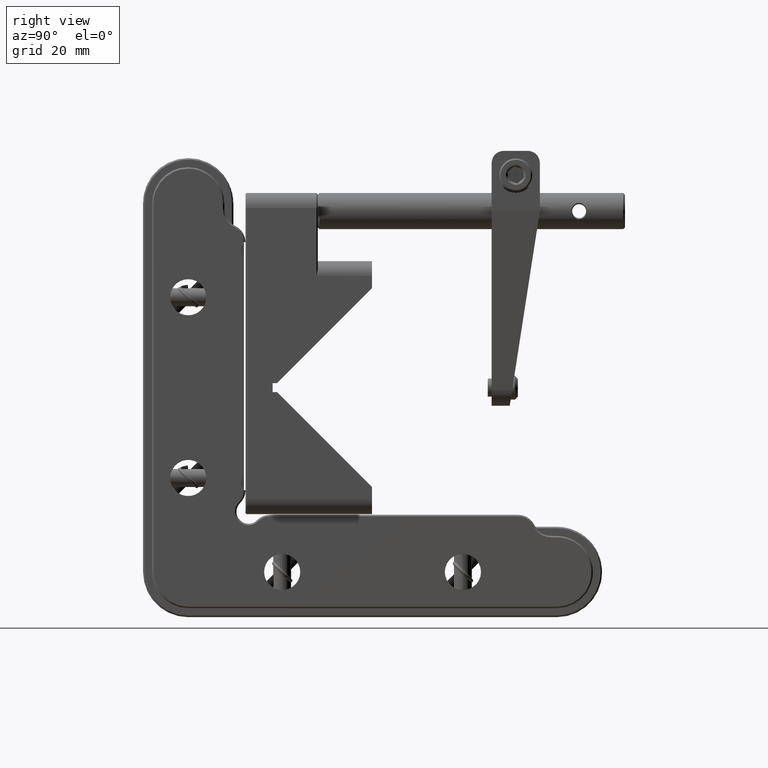
[diagram: clean part render]
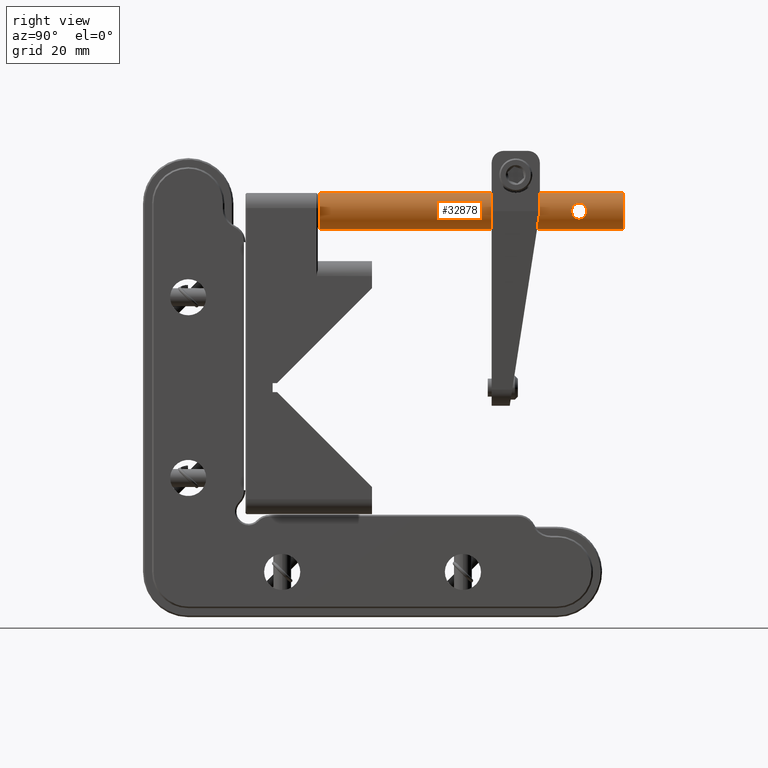
[diagram: same view with one face highlighted and labeled with its STEP entity id]
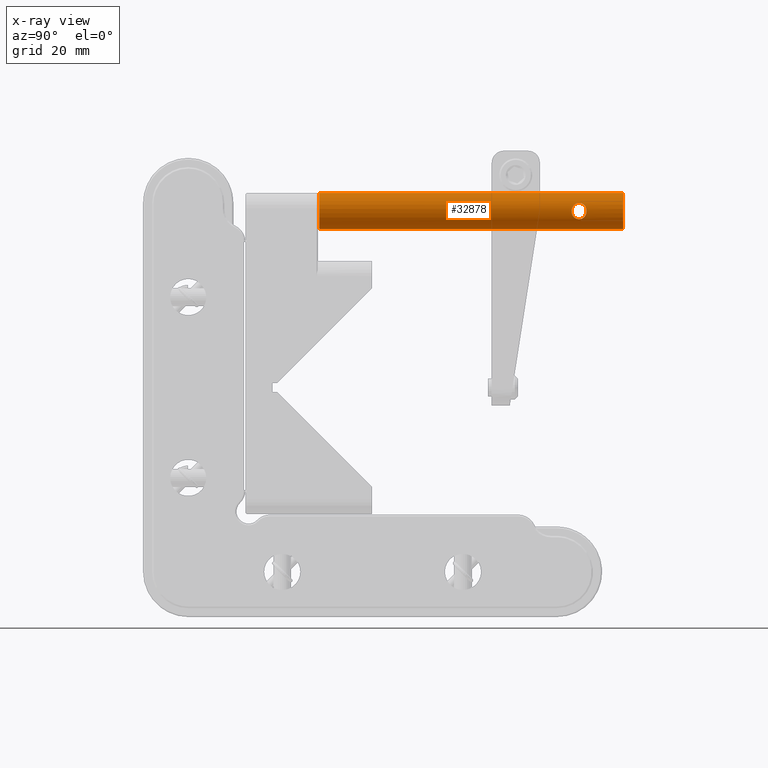
[diagram: x-ray of the same camera — body ghosted, the highlighted face saturated]
A machine part, right view. The second image highlights one B-rep face of the part: STEP entity #32878.
The next image is the same camera in x-ray: the body ghosted, the highlighted face saturated — about 0% of this face is hidden behind the body in this view.
In plain terms, the highlighted cylindrical surface (edge-blend (fillet) strip) has radius 3 mm, axis along (0, 1, 0).
Its self-contained STEP definition (entity closure, byte-faithful):
#115 = EDGE_LOOP ( 'NONE', ( #31684, #43136 ) ) ;
#433 = FACE_OUTER_BOUND ( 'NONE', #32972, .T. ) ;
#723 = EDGE_CURVE ( 'NONE', #34373, #32901, #19342, .T. ) ;
#1007 = CARTESIAN_POINT ( 'NONE',  ( 14.42555659735598184, 35.38117631926300533, 28.63320437474260771 ) ) ;
#2504 = DIRECTION ( 'NONE',  ( 0.000000000000000000, 1.000000000000000000, 0.000000000000000000 ) ) ;
#2519 = ORIENTED_EDGE ( 'NONE', *, *, #40639, .T. ) ;
#2541 = CARTESIAN_POINT ( 'NONE',  ( 14.49606779950914159, 35.53141194402265057, 29.30027228311324450 ) ) ;
#3558 = DIRECTION ( 'NONE',  ( 0.000000000000000000, 0.000000000000000000, 1.000000000000000000 ) ) ;
#3627 = CARTESIAN_POINT ( 'NONE',  ( 14.25977099211337951, 33.62618597570745038, 30.46971283732862190 ) ) ;
#3792 = FACE_BOUND ( 'NONE', #115, .T. ) ;
#4101 = CARTESIAN_POINT ( 'NONE',  ( 14.49605192030435319, 35.53137949943939589, 29.47522846602337765 ) ) ;
#4362 = DIRECTION ( 'NONE',  ( -1.000000000000000000, 0.000000000000000000, 0.000000000000000000 ) ) ;
#4844 = CARTESIAN_POINT ( 'NONE',  ( 14.42529384615246180, 33.17942465290518328, 28.63230550279885023 ) ) ;
#5550 = CARTESIAN_POINT ( 'NONE',  ( 14.25979527131619307, 34.93390188683142128, 28.13034303596488783 ) ) ;
#6124 = VERTEX_POINT ( 'NONE', #19778 ) ;
#6344 = LINE ( 'NONE', #16421, #18990 ) ;
#6590 = DIRECTION ( 'NONE',  ( 0.000000000000000000, 1.000000000000000000, 0.000000000000000000 ) ) ;
#6733 = VECTOR ( 'NONE', #6590, 1000.000000000000000 ) ;
#6756 = CARTESIAN_POINT ( 'NONE',  ( 14.42525751429290359, 35.38049334602149543, 29.96784628500989811 ) ) ;
#8039 = B_SPLINE_CURVE_WITH_KNOTS ( 'NONE', 3,
 ( #21877, #36491, #18732, #28596, #22345, #32657, #3627, #29072, #36248, #36960, #18260, #33360, #28841, #43712, #21639, #40093, #6756, #24997, #4101, #14892 ),
 .UNSPECIFIED., .F., .F.,
 ( 4, 2, 2, 2, 2, 2, 2, 2, 2, 4 ),
 ( 3.469446951953614189E-18, 0.0005167637206666471795, 0.001033527441333290890, 0.001550291161999934600, 0.002067054882666578310, 0.002325436742999910898, 0.002583818603333242619, 0.003100582323999902159, 0.003617346044666561265, 0.004134109765333220804 ),
 .UNSPECIFIED. ) ;
#8436 = CARTESIAN_POINT ( 'NONE',  ( 14.30303947073399229, 33.49154316524111863, 28.23307355668145036 ) ) ;
#8914 = CARTESIAN_POINT ( 'NONE',  ( 14.30376987810628009, 35.07060263748739715, 28.23501115534193318 ) ) ;
#9952 = CARTESIAN_POINT ( 'NONE',  ( 14.49606781186548865, 33.02858803072962246, 29.30000000000000071 ) ) ;
#12273 = CARTESIAN_POINT ( 'NONE',  ( 14.48052246102774632, 35.50051483220195081, 28.95423794703473064 ) ) ;
#12501 = CARTESIAN_POINT ( 'NONE',  ( 14.17223602422485484, 34.19785062313397361, 27.94422575273011944 ) ) ;
#12645 = DIRECTION ( 'NONE',  ( -5.782411586589328056E-16, 1.000000000000000000, 5.782411586589351722E-16 ) ) ;
#14377 = ORIENTED_EDGE ( 'NONE', *, *, #723, .T. ) ;
#14892 = CARTESIAN_POINT ( 'NONE',  ( 14.49606779950914159, 35.53141194402265057, 29.30027228311324450 ) ) ;
#16421 = CARTESIAN_POINT ( 'NONE',  ( 11.49606781186549931, -13.84119999999959916, 26.30000000000000071 ) ) ;
#16569 = CARTESIAN_POINT ( 'NONE',  ( 14.49608366011930372, 35.53144435061337703, 29.12552097475968438 ) ) ;
#18154 = EDGE_CURVE ( 'NONE', #43014, #34373, #6344, .T. ) ;
#18260 = CARTESIAN_POINT ( 'NONE',  ( 14.17718052765200731, 34.44998604857039481, 30.64613417799378681 ) ) ;
#18430 = CARTESIAN_POINT ( 'NONE',  ( 11.49606781186549931, -13.84119999999959916, 29.30000000000000071 ) ) ;
#18486 = EDGE_CURVE ( 'NONE', #6124, #32901, #36564, .T. ) ;
#18605 = CIRCLE ( 'NONE', #46216, 2.999999999999997335 ) ;
#18732 = CARTESIAN_POINT ( 'NONE',  ( 14.48049490086300040, 33.05954089098165838, 29.64598672048369465 ) ) ;
#18904 = CYLINDRICAL_SURFACE ( 'NONE', #26336, 3.000000000000002665 ) ;
#18990 = VECTOR ( 'NONE', #2504, 1000.000000000000000 ) ;
#19342 = CIRCLE ( 'NONE', #25477, 2.999999999999993783 ) ;
#19483 = CARTESIAN_POINT ( 'NONE',  ( 14.17718045251483439, 34.11000545220029778, 27.95386559678504668 ) ) ;
#19719 = CARTESIAN_POINT ( 'NONE',  ( 14.19415199656438453, 34.62928754115883834, 27.98598758913189855 ) ) ;
#19778 = CARTESIAN_POINT ( 'NONE',  ( 11.49606781186547266, -8.799999999999620570, 32.29999999999999716 ) ) ;
#19958 = CARTESIAN_POINT ( 'NONE',  ( 14.49606781186548865, 33.02858806568104200, 29.12501886983622157 ) ) ;
#21639 = CARTESIAN_POINT ( 'NONE',  ( 14.30301436364105072, 35.06837702673509227, 30.36698880926079980 ) ) ;
#21877 = CARTESIAN_POINT ( 'NONE',  ( 14.49606781186548865, 33.02858803072962246, 29.30000000000000071 ) ) ;
#22345 = CARTESIAN_POINT ( 'NONE',  ( 14.38635186985917791, 33.26701775845934606, 30.11464250985932267 ) ) ;
#23321 = CARTESIAN_POINT ( 'NONE',  ( 14.38589572499132885, 33.26808570003787224, 28.48371784188181266 ) ) ;
#23795 = CARTESIAN_POINT ( 'NONE',  ( 14.49606781186548865, 33.02858803072962246, 29.30000000000000071 ) ) ;
#23861 = CARTESIAN_POINT ( 'NONE',  ( 11.49606781186552595, 41.60000000000000142, 26.30000000000000782 ) ) ;
#24014 = VERTEX_POINT ( 'NONE', #9952 ) ;
#24025 = CARTESIAN_POINT ( 'NONE',  ( 14.17268640774572042, 34.45622813046223598, 27.94511501085904470 ) ) ;
#24119 = ORIENTED_EDGE ( 'NONE', *, *, #18154, .T. ) ;
#24997 = CARTESIAN_POINT ( 'NONE',  ( 14.48008954775475132, 35.49960807160828580, 29.64897743902537286 ) ) ;
#25159 = CARTESIAN_POINT ( 'NONE',  ( 11.49606781186549931, 41.60000000000000142, 32.29999999999999716 ) ) ;
#25477 = AXIS2_PLACEMENT_3D ( 'NONE', #30970, #37930, #4362 ) ;
#26336 = AXIS2_PLACEMENT_3D ( 'NONE', #18430, #33525, #3558 ) ;
#26679 = CARTESIAN_POINT ( 'NONE',  ( 14.25916243192784805, 33.62769392605834895, 28.12880134165838797 ) ) ;
#28596 = CARTESIAN_POINT ( 'NONE',  ( 14.42551725332261903, 33.17891308938466466, 29.96696164075582303 ) ) ;
#28841 = CARTESIAN_POINT ( 'NONE',  ( 14.20940239311476105, 34.69934819604343801, 30.58039616914104997 ) ) ;
#28913 = CARTESIAN_POINT ( 'NONE',  ( 11.49606781186549931, -13.84119999999959916, 32.30000000000000426 ) ) ;
#29072 = CARTESIAN_POINT ( 'NONE',  ( 14.19414408695442731, 33.93077347352075179, 30.61402732244268776 ) ) ;
#30970 = CARTESIAN_POINT ( 'NONE',  ( 11.49606781186549220, 41.60000000000000853, 29.30000000000000071 ) ) ;
#30983 = CARTESIAN_POINT ( 'NONE',  ( 14.19580050271296123, 33.94192845880744613, 27.99160930095860067 ) ) ;
#31616 = EDGE_CURVE ( 'NONE', #37036, #24014, #34765, .T. ) ;
#31684 = ORIENTED_EDGE ( 'NONE', *, *, #31616, .T. ) ;
#32657 = CARTESIAN_POINT ( 'NONE',  ( 14.30373879143920313, 33.48949615420276160, 30.36506714587482136 ) ) ;
#32878 = ADVANCED_FACE ( 'NONE', ( #3792, #433 ), #18904, .T. ) ;
#32901 = VERTEX_POINT ( 'NONE', #25159 ) ;
#32972 = EDGE_LOOP ( 'NONE', ( #2519, #24119, #14377, #44993 ) ) ;
#33360 = CARTESIAN_POINT ( 'NONE',  ( 14.19579635776059234, 34.61804356115240466, 30.60839917395052012 ) ) ;
#33525 = DIRECTION ( 'NONE',  ( 0.000000000000000000, 1.000000000000000000, 0.000000000000000000 ) ) ;
#34103 = CARTESIAN_POINT ( 'NONE',  ( 14.20941006737307433, 33.86060830026050184, 28.01961984213409096 ) ) ;
#34333 = CARTESIAN_POINT ( 'NONE',  ( 14.48011660333772355, 33.06033632651537602, 28.95123946374283719 ) ) ;
#34373 = VERTEX_POINT ( 'NONE', #23861 ) ;
#34456 = CARTESIAN_POINT ( 'NONE',  ( 11.49606781186554549, -8.799999999999620570, 26.30000000000000426 ) ) ;
#34765 = B_SPLINE_CURVE_WITH_KNOTS ( 'NONE', 3,
 ( #34801, #16569, #12273, #1007, #41786, #8914, #5550, #19719, #24025, #12501, #19483, #30983, #34103, #26679, #8436, #23321, #4844, #34333, #19958, #23795 ),
 .UNSPECIFIED., .F., .F.,
 ( 4, 2, 2, 2, 2, 2, 2, 2, 2, 4 ),
 ( 5.948862305358518174E-17, 0.0005168241879093800426, 0.001033648375818700454, 0.001550472563728021299, 0.002067296751637341494, 0.002325708845592001917, 0.002584120939546661905, 0.003100945127455985786, 0.003617769315365309667, 0.004134593503274634416 ),
 .UNSPECIFIED. ) ;
#34801 = CARTESIAN_POINT ( 'NONE',  ( 14.49606779950914159, 35.53141194402265057, 29.30027228311324450 ) ) ;
#36248 = CARTESIAN_POINT ( 'NONE',  ( 14.17268506369692638, 34.10381160685837187, 30.65488764292515356 ) ) ;
#36491 = CARTESIAN_POINT ( 'NONE',  ( 14.49606781186549398, 33.02858799582804039, 29.47473086119831009 ) ) ;
#36564 = LINE ( 'NONE', #28913, #6733 ) ;
#36960 = CARTESIAN_POINT ( 'NONE',  ( 14.17223665201796834, 34.36215430415149541, 30.65577300771007074 ) ) ;
#37036 = VERTEX_POINT ( 'NONE', #2541 ) ;
#37930 = DIRECTION ( 'NONE',  ( 0.000000000000000000, -1.000000000000000000, -0.000000000000000000 ) ) ;
#40093 = CARTESIAN_POINT ( 'NONE',  ( 14.38586000550825617, 35.29183007932883243, 30.11640378561946818 ) ) ;
#40639 = EDGE_CURVE ( 'NONE', #6124, #43014, #18605, .T. ) ;
#41786 = CARTESIAN_POINT ( 'NONE',  ( 14.38639194988926384, 35.29307393389436953, 28.48549492992611221 ) ) ;
#42156 = DIRECTION ( 'NONE',  ( -1.000000000000000000, -5.782411586589362569E-16, 0.000000000000000000 ) ) ;
#43014 = VERTEX_POINT ( 'NONE', #34456 ) ;
#43136 = ORIENTED_EDGE ( 'NONE', *, *, #46399, .T. ) ;
#43712 = CARTESIAN_POINT ( 'NONE',  ( 14.25914567363475705, 34.93224287195958766, 30.47123709334059427 ) ) ;
#44993 = ORIENTED_EDGE ( 'NONE', *, *, #18486, .F. ) ;
#45535 = CARTESIAN_POINT ( 'NONE',  ( 11.49606781186549220, -8.799999999999618794, 29.30000000000000071 ) ) ;
#46216 = AXIS2_PLACEMENT_3D ( 'NONE', #45535, #12645, #42156 ) ;
#46399 = EDGE_CURVE ( 'NONE', #24014, #37036, #8039, .T. ) ;